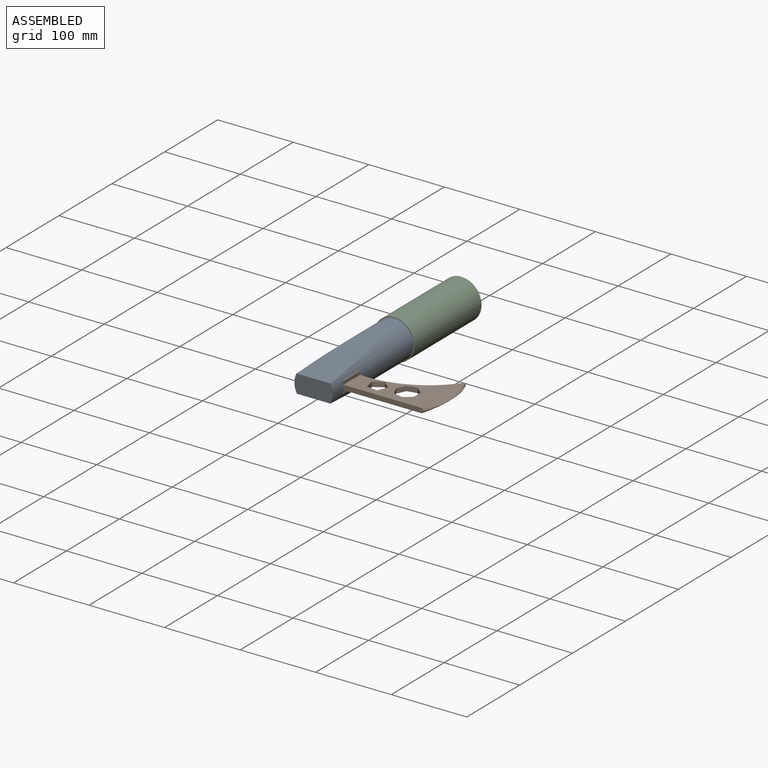
[diagram: assembled view]
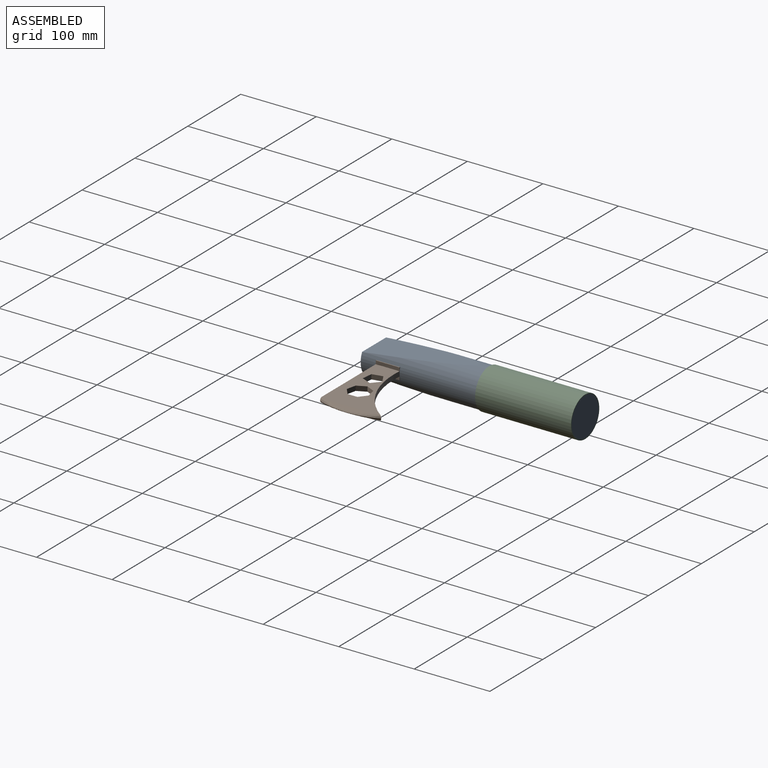
[diagram: assembled view, second angle]
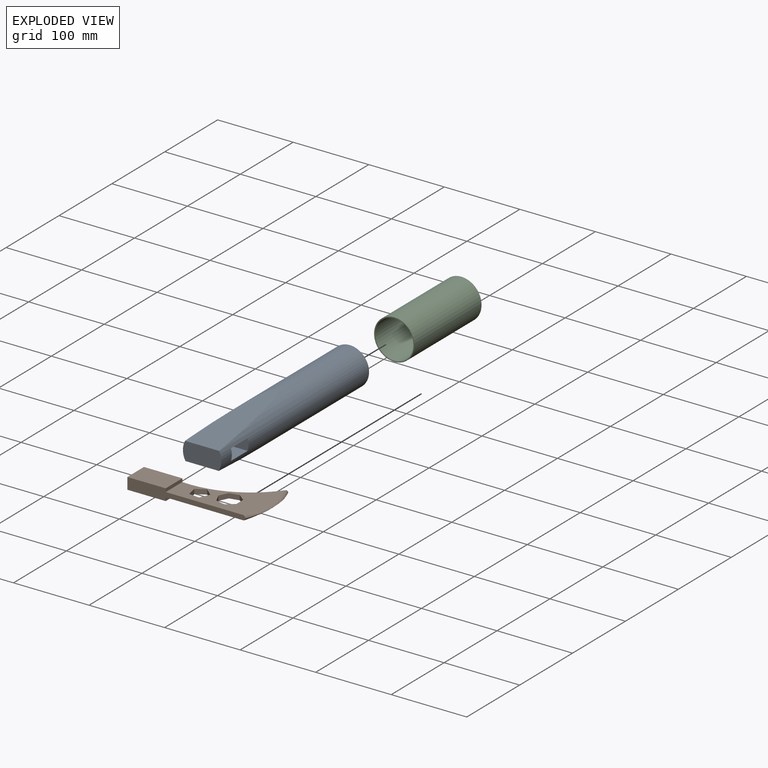
[diagram: exploded view]
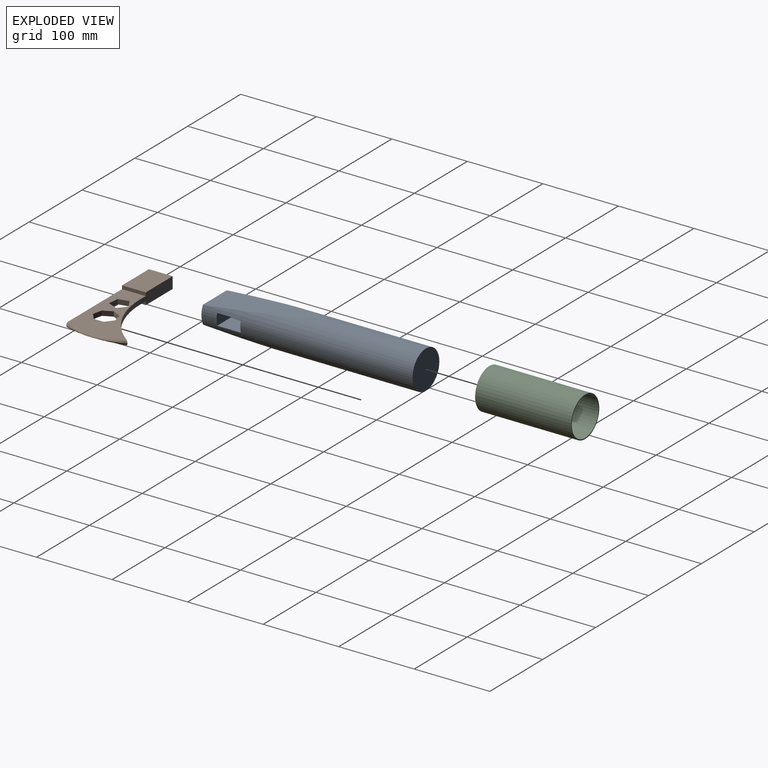
[diagram: exploded view, second angle]
ASSEMBLY  parts=3 mates=2
PART A: 9 faces, bbox 50.8x279.4x50.8 mm
  f0: cylinder r=25.4mm len=279.4mm, axis (0,1,0), area 33630.6mm2, adj f1,f2,f3,f4,f5,f6,f7,f8
  f1: plane 50.8x24.06mm, normal (0,-1,0), area 1174.7mm2, adj f0,f3,f4
  f2: plane 50.8x50.8mm, normal (0,1,0), area 2026.8mm2, adj f0
  f3: plane 139.7x44.15mm, normal (0,-0.09,-1), area 4395.9mm2, adj f0,f1
  f4: plane 139.7x45.3mm, normal (0,-0.1,1), area 4543.8mm2, adj f0,f1
  f5: plane 50.8x15.24mm, normal (0,-1,0), area 762.4mm2, adj f0,f6,f8
  f6: plane 48.46x31.43mm, normal (0,0,-1), area 1523.2mm2, adj f0,f5,f7
  f7: plane 50.8x15.24mm, normal (0,1,0), area 762.4mm2, adj f0,f6,f8
  f8: plane 48.46x31.43mm, normal (0,0,1), area 1523.2mm2, adj f0,f5,f7
PART B: 26 faces, bbox 166.4x15.7x94.3 mm
  f0: plane 105.96x79.47mm, normal (0,-1,0), area 3740.9mm2, adj f5,f7,f9,f10,f11,f12,f13,f14
  f1: plane 105.96x79.47mm, normal (0,1,0), area 3740.9mm2, adj f2,f5,f9,f10,f11,f12,f13,f14
  f2: plane 31.42x4.45mm, normal (1,0,0), area 139.7mm2, adj f1,f3,f4,f5
  f3: plane 50.8x15.24mm, normal (0,0,-1), area 774.2mm2, adj f2,f4,f6,f7,f8,f19
  f4: plane 50.8x31.42mm, normal (0,1,0), area 1596.1mm2, adj f2,f3,f5,f8
  f5: plane 156.5x15.51mm, normal (0,0,1), area 1438.8mm2, adj f0,f1,f2,f4,f6,f7,f8,f24
  f6: plane 50.8x31.42mm, normal (0,-1,0), area 1596.1mm2, adj f3,f5,f7,f8
  f7: plane 31.42x4.45mm, normal (1,0,0), area 139.7mm2, adj f0,f3,f5,f6
  f8: plane 31.42x15.24mm, normal (-1,0,0), area 478.8mm2, adj f3,f4,f5,f6
  f9: plane 13.82x6.35mm, normal (0.98,0,-0.21), area 89.8mm2, adj f0,f1,f10,f21
  f10: plane 14.07x6.35mm, normal (0.1,0,-0.99), area 89.8mm2, adj f0,f1,f9,f11
  f11: plane 12.94x6.35mm, normal (-0.91,0,-0.4), area 89.8mm2, adj f0,f1,f10,f12
  f12: plane 10.54x9.43mm, normal (-0.67,0,0.75), area 89.8mm2, adj f0,f1,f11,f21
  f13: plane 12.62x6.35mm, normal (0.22,0,-0.97), area 82.2mm2, adj f0,f1,f14,f20
  f14: plane 10.12x8.07mm, normal (-0.62,0,-0.78), area 82.2mm2, adj f0,f1,f13,f15
  f15: plane 12.95x6.35mm, normal (-1,0,0), area 82.2mm2, adj f0,f1,f14,f16
  f16: plane 10.12x8.07mm, normal (-0.62,0,0.78), area 82.2mm2, adj f0,f1,f15,f17
  f17: plane 12.62x6.35mm, normal (0.22,0,0.97), area 82.2mm2, adj f0,f1,f16,f18
  f18: plane 11.67x6.35mm, normal (0.9,0,0.43), area 82.2mm2, adj f0,f1,f17,f20
  f19: cylinder r=116.97mm len=105.46mm, axis (0,1,0), area 766.9mm2, adj f0,f1,f3,f24,f25
  f20: plane 11.67x6.35mm, normal (0.9,0,-0.43), area 82.2mm2, adj f0,f1,f13,f18
  f21: plane 12.23x7.11mm, normal (0.5,0,0.86), area 89.8mm2, adj f0,f1,f9,f12
  f22: plane 61.56x5.74mm, normal (0.24,-0.97,0), area 244.5mm2, adj f0,f24
  f23: plane 61.57x5.75mm, normal (0.24,0.97,0), area 244.7mm2, adj f1,f25
  f24: bspline ~82.17x13.46mm, area 330.2mm2, adj f0,f5,f19,f22,f25
  f25: bspline ~93.84x16.22mm, area 329.5mm2, adj f1,f5,f19,f23,f24
PART C: 4 faces, bbox 127x53.4x53.4 mm
  f0: cylinder r=26.7mm len=127mm, axis (-1,0,0), area 21307mm2, adj f1,f2
  f1: plane 53.4x53.4mm, normal (1,0,0), area 213.1mm2, adj f0,f3
  f2: plane 53.4x53.4mm, normal (-1,0,0), area 213.1mm2, adj f0,f3
  f3: cylinder r=25.4mm len=127mm, axis (1,0,0), area 20268.3mm2, adj f1,f2
PLACE A rot(axis=(-0.48,-0.62,-0.62),0deg) t=(19.09,-20.18,106.08)mm
PLACE B rot(axis=(1,0,0),90deg) t=(19.09,-124.12,106.08)mm
PLACE C rot(axis=(-0.58,-0.58,0.58),120deg) t=(19.09,56.02,106.08)mm
MATE fastened A.f0 <-> C.f0  axis (0,1,0) through (19.09,119.52,106.08)mm
MATE fastened B.f3 <-> A.f0  axis (0,1,0) through (19.09,-108.41,106.08)mm
